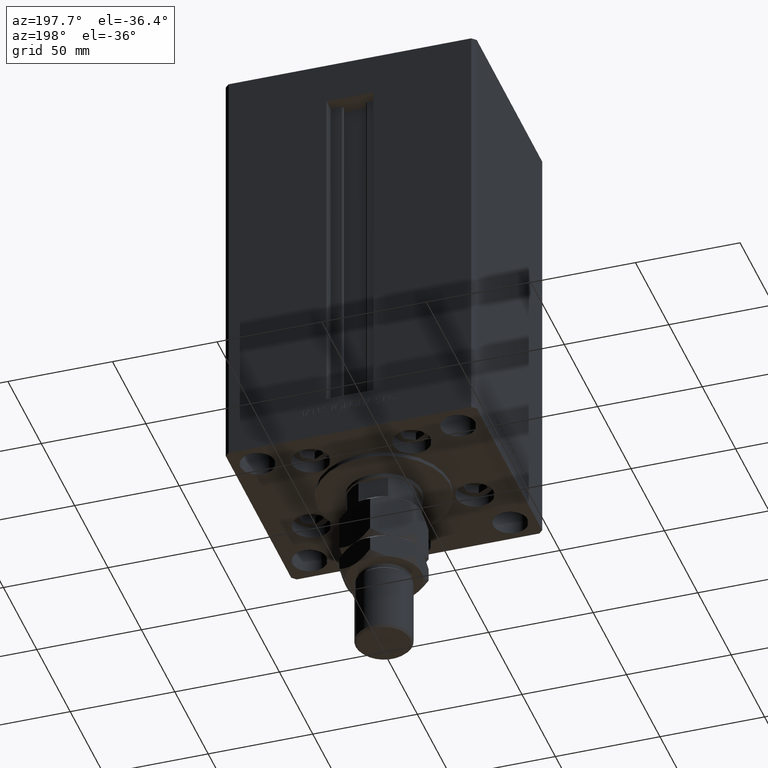
[diagram: clean part render]
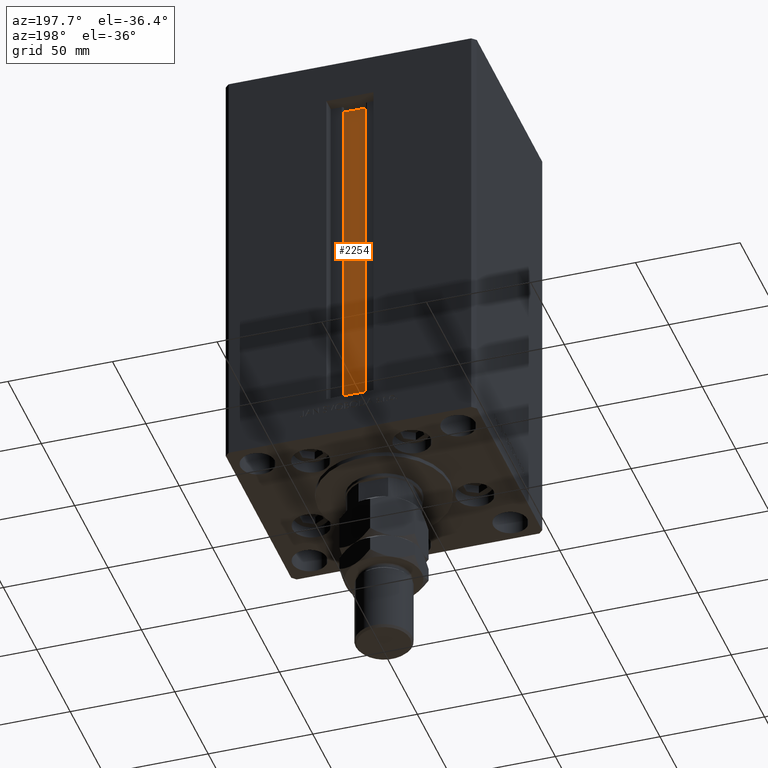
[diagram: same view with one face highlighted and labeled with its STEP entity id]
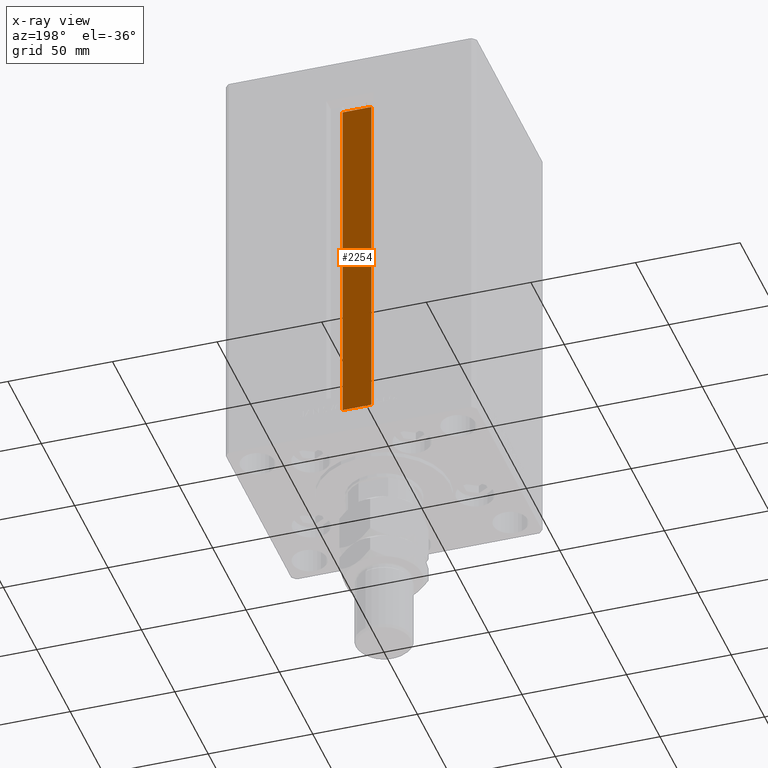
[diagram: x-ray of the same camera — body ghosted, the highlighted face saturated]
A machine part, auxiliary view. The second image highlights one B-rep face of the part: STEP entity #2254.
The next image is the same camera in x-ray: the body ghosted, the highlighted face saturated — about 0% of this face is hidden behind the body in this view.
In plain terms, the highlighted planar face has unit normal (0, -1, 0).
Its self-contained STEP definition (entity closure, byte-faithful):
#2254 = ADVANCED_FACE ( 'NONE', ( #31167 ), #8294, .F. ) ;
#4802 = CARTESIAN_POINT ( 'NONE',  ( 0.000000000000000000, 40.49999999999987210, 168.5000000000000000 ) ) ;
#4965 = CARTESIAN_POINT ( 'NONE',  ( 6.876153656360466826, 40.49999999999987210, 0.000000000000000000 ) ) ;
#6116 = ORIENTED_EDGE ( 'NONE', *, *, #47762, .F. ) ;
#8294 = PLANE ( 'NONE',  #35723 ) ;
#8378 = VECTOR ( 'NONE', #35893, 1000.000000000000000 ) ;
#8829 = LINE ( 'NONE', #4965, #36691 ) ;
#8992 = EDGE_LOOP ( 'NONE', ( #27300, #36089, #40578, #6116 ) ) ;
#13221 = EDGE_CURVE ( 'NONE', #32567, #13824, #20714, .T. ) ;
#13824 = VERTEX_POINT ( 'NONE', #49155 ) ;
#20232 = CARTESIAN_POINT ( 'NONE',  ( -6.876153656360466826, 40.49999999999987210, 0.000000000000000000 ) ) ;
#20714 = LINE ( 'NONE', #47441, #26193 ) ;
#24313 = EDGE_CURVE ( 'NONE', #46747, #36577, #50539, .T. ) ;
#24510 = DIRECTION ( 'NONE',  ( 1.000000000000000000, -0.000000000000000000, -0.000000000000000000 ) ) ;
#26193 = VECTOR ( 'NONE', #36370, 1000.000000000000000 ) ;
#27067 = DIRECTION ( 'NONE',  ( 0.000000000000000000, 0.000000000000000000, -1.000000000000000000 ) ) ;
#27300 = ORIENTED_EDGE ( 'NONE', *, *, #13221, .F. ) ;
#31167 = FACE_OUTER_BOUND ( 'NONE', #8992, .T. ) ;
#31414 = DIRECTION ( 'NONE',  ( 0.000000000000000000, -1.000000000000000000, -0.000000000000000000 ) ) ;
#32567 = VERTEX_POINT ( 'NONE', #44120 ) ;
#35723 = AXIS2_PLACEMENT_3D ( 'NONE', #39886, #31414, #27067 ) ;
#35893 = DIRECTION ( 'NONE',  ( -0.000000000000000000, -0.000000000000000000, 1.000000000000000000 ) ) ;
#35895 = DIRECTION ( 'NONE',  ( -1.000000000000000000, 0.000000000000000000, 0.000000000000000000 ) ) ;
#36089 = ORIENTED_EDGE ( 'NONE', *, *, #38017, .F. ) ;
#36370 = DIRECTION ( 'NONE',  ( -0.000000000000000000, -0.000000000000000000, 1.000000000000000000 ) ) ;
#36577 = VERTEX_POINT ( 'NONE', #41025 ) ;
#36691 = VECTOR ( 'NONE', #24510, 1000.000000000000000 ) ;
#38017 = EDGE_CURVE ( 'NONE', #46747, #32567, #8829, .T. ) ;
#39886 = CARTESIAN_POINT ( 'NONE',  ( 6.876153656360466826, 40.49999999999987210, 0.000000000000000000 ) ) ;
#39995 = LINE ( 'NONE', #4802, #43062 ) ;
#40578 = ORIENTED_EDGE ( 'NONE', *, *, #24313, .T. ) ;
#41025 = CARTESIAN_POINT ( 'NONE',  ( -6.876153656360466826, 40.49999999999987210, 168.5000000000000000 ) ) ;
#43062 = VECTOR ( 'NONE', #35895, 1000.000000000000000 ) ;
#44120 = CARTESIAN_POINT ( 'NONE',  ( 6.876153656360466826, 40.49999999999987210, 0.000000000000000000 ) ) ;
#46747 = VERTEX_POINT ( 'NONE', #48260 ) ;
#47441 = CARTESIAN_POINT ( 'NONE',  ( 6.876153656360466826, 40.49999999999987210, 0.000000000000000000 ) ) ;
#47762 = EDGE_CURVE ( 'NONE', #13824, #36577, #39995, .T. ) ;
#48260 = CARTESIAN_POINT ( 'NONE',  ( -6.876153656360466826, 40.49999999999987210, 0.000000000000000000 ) ) ;
#49155 = CARTESIAN_POINT ( 'NONE',  ( 6.876153656360466826, 40.49999999999987210, 168.5000000000000000 ) ) ;
#50539 = LINE ( 'NONE', #20232, #8378 ) ;